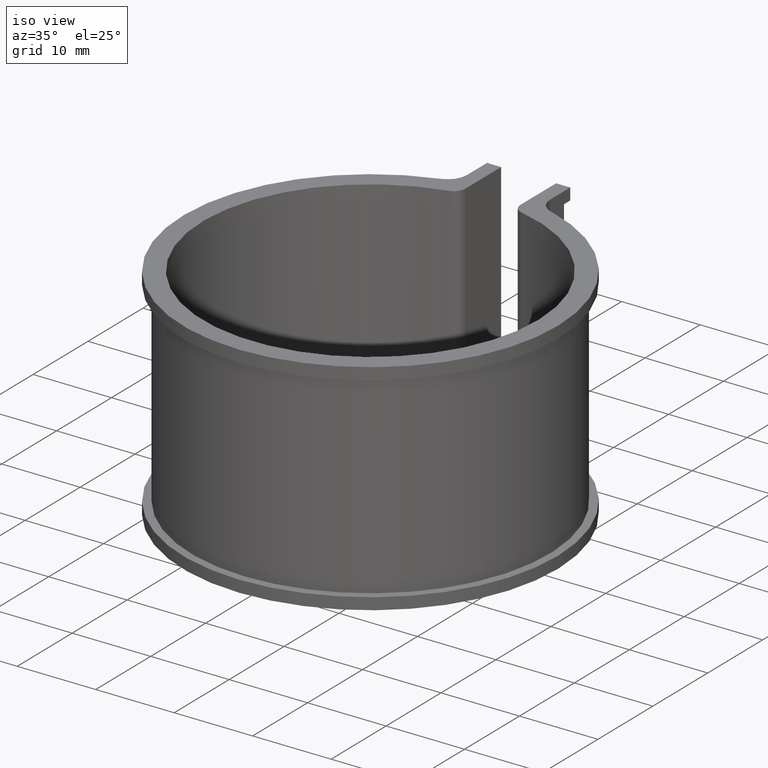
[diagram: clean part render]
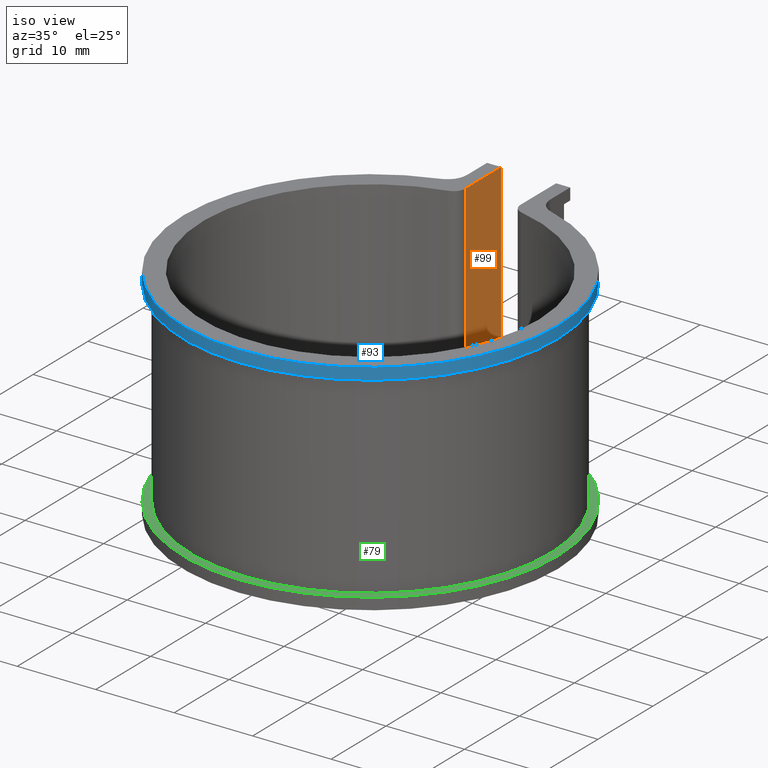
[diagram: same view with three faces highlighted in distinct colors, each labeled with its STEP entity id]
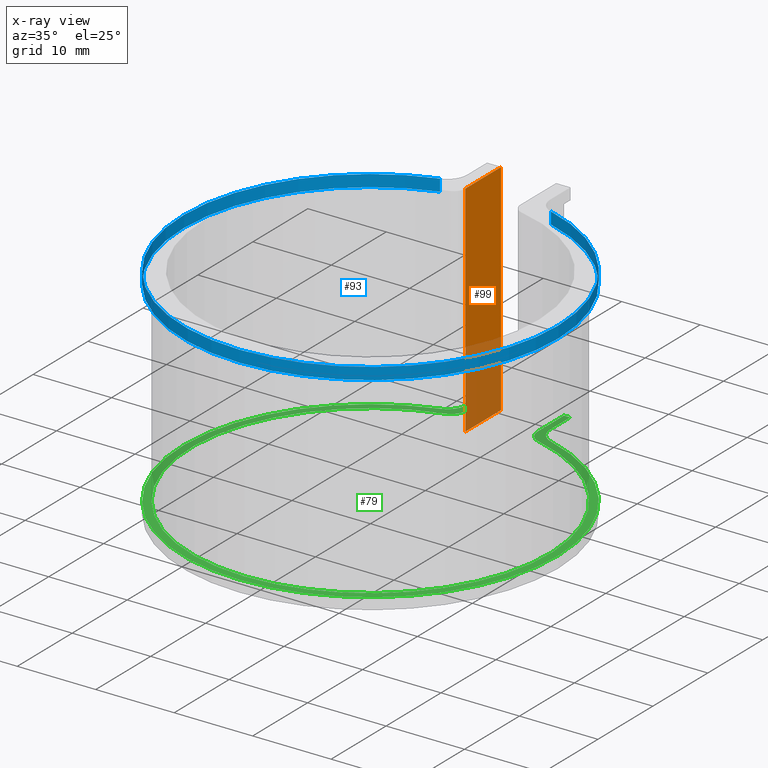
[diagram: x-ray of the same camera — body ghosted, the three highlighted faces saturated]
A machine part, iso view with three faces highlighted in distinct colors.
The next image is the same camera in x-ray (body ghosted, the three faces saturated) — at least one of them is partly hidden behind the body in this view.
Their STEP definitions:

[orange] entity #99 — the highlighted planar face has unit normal (1, -0, 0).
#99 = ADVANCED_FACE( '', ( #150 ), #151, .T. );
#150 = FACE_OUTER_BOUND( '', #202, .T. );
#151 = PLANE( '', #203 );
#202 = EDGE_LOOP( '', ( #414, #415, #416, #417 ) );
#203 = AXIS2_PLACEMENT_3D( '', #418, #419, #420 );
#414 = ORIENTED_EDGE( '', *, *, #488, .F. );
#415 = ORIENTED_EDGE( '', *, *, #481, .T. );
#416 = ORIENTED_EDGE( '', *, *, #498, .T. );
#417 = ORIENTED_EDGE( '', *, *, #436, .T. );
#418 = CARTESIAN_POINT( '', ( -3.50000000000000, 21.0611609366625, -25.0000000000000 ) );
#419 = DIRECTION( '', ( 1.00000000000000, -8.32667268468868E-017, 0.000000000000000 ) );
#420 = DIRECTION( '', ( -8.32667268468868E-017, -1.00000000000000, 0.000000000000000 ) );
#436 = EDGE_CURVE( '', #517, #515, #518, .T. );
#481 = EDGE_CURVE( '', #595, #592, #596, .F. );
#488 = EDGE_CURVE( '', #595, #515, #606, .T. );
#498 = EDGE_CURVE( '', #592, #517, #618, .T. );
#515 = VERTEX_POINT( '', #642 );
#517 = VERTEX_POINT( '', #645 );
#518 = LINE( '', #646, #647 );
#592 = VERTEX_POINT( '', #748 );
#595 = VERTEX_POINT( '', #751 );
#596 = LINE( '', #752, #753 );
#606 = LINE( '', #765, #766 );
#618 = LINE( '', #784, #785 );
#642 = CARTESIAN_POINT( '', ( -3.50000000000000, 28.8025110199728, 1.50000000000000 ) );
#645 = CARTESIAN_POINT( '', ( -3.50000000000000, 28.8025110199728, -26.5000000000000 ) );
#646 = CARTESIAN_POINT( '', ( -3.50000000000000, 28.8025110199727, -25.0000000000000 ) );
#647 = VECTOR( '', #796, 1000.00000000000 );
#748 = CARTESIAN_POINT( '', ( -3.50000000000000, 22.2962440783196, -26.5000000000000 ) );
#751 = CARTESIAN_POINT( '', ( -3.50000000000000, 22.2962440783196, 1.50000000000000 ) );
#752 = CARTESIAN_POINT( '', ( -3.50000000000000, 22.2962440783196, -25.0000000000000 ) );
#753 = VECTOR( '', #875, 1000.00000000000 );
#765 = CARTESIAN_POINT( '', ( -3.50000000000000, 21.0611609366626, 1.50000000000000 ) );
#766 = VECTOR( '', #890, 1000.00000000000 );
#784 = CARTESIAN_POINT( '', ( -3.50000000000000, 21.0611609366626, -26.5000000000000 ) );
#785 = VECTOR( '', #906, 1000.00000000000 );
#796 = DIRECTION( '', ( 0.000000000000000, 0.000000000000000, 1.00000000000000 ) );
#875 = DIRECTION( '', ( 0.000000000000000, 0.000000000000000, 1.00000000000000 ) );
#890 = DIRECTION( '', ( 6.12303176911189E-017, 1.00000000000000, 0.000000000000000 ) );
#906 = DIRECTION( '', ( 6.12303176911189E-017, 1.00000000000000, 0.000000000000000 ) );

[blue] entity #93 — the highlighted cylindrical surface (partial cylindrical patch) has radius 23.85 mm, axis along (0, 0, 1).
#93 = ADVANCED_FACE( '', ( #138 ), #139, .T. );
#138 = FACE_OUTER_BOUND( '', #190, .T. );
#139 = CYLINDRICAL_SURFACE( '', #191, 23.8500000000000 );
#190 = EDGE_LOOP( '', ( #360, #361, #362, #363 ) );
#191 = AXIS2_PLACEMENT_3D( '', #364, #365, #366 );
#360 = ORIENTED_EDGE( '', *, *, #451, .T. );
#361 = ORIENTED_EDGE( '', *, *, #478, .T. );
#362 = ORIENTED_EDGE( '', *, *, #489, .F. );
#363 = ORIENTED_EDGE( '', *, *, #473, .T. );
#364 = CARTESIAN_POINT( '', ( 0.000000000000000, 2.08166817117217E-014, 1.50000000000000 ) );
#365 = DIRECTION( '', ( 0.000000000000000, 0.000000000000000, 1.00000000000000 ) );
#366 = DIRECTION( '', ( 0.000000000000000, -1.00000000000000, 0.000000000000000 ) );
#451 = EDGE_CURVE( '', #545, #543, #546, .T. );
#473 = EDGE_CURVE( '', #579, #545, #581, .T. );
#478 = EDGE_CURVE( '', #543, #587, #590, .F. );
#489 = EDGE_CURVE( '', #579, #587, #607, .T. );
#543 = VERTEX_POINT( '', #682 );
#545 = VERTEX_POINT( '', #684 );
#546 = CIRCLE( '', #685, 23.8500000000000 );
#579 = VERTEX_POINT( '', #730 );
#581 = LINE( '', #732, #733 );
#587 = VERTEX_POINT( '', #741 );
#590 = LINE( '', #744, #745 );
#607 = CIRCLE( '', #767, 23.8500000000000 );
#682 = CARTESIAN_POINT( '', ( 7.05996204933587, 22.7811201625806, 2.13821176807376E-047 ) );
#684 = CARTESIAN_POINT( '', ( -7.05996204933587, 22.7811201625806, 2.13821176807376E-047 ) );
#685 = AXIS2_PLACEMENT_3D( '', #819, #820, #821 );
#730 = CARTESIAN_POINT( '', ( -7.05996204933587, 22.7811201625806, 1.50000000000000 ) );
#732 = CARTESIAN_POINT( '', ( -7.05996204933587, 22.7811201625806, 1.50000000000000 ) );
#733 = VECTOR( '', #861, 1000.00000000000 );
#741 = CARTESIAN_POINT( '', ( 7.05996204933587, 22.7811201625806, 1.50000000000000 ) );
#744 = CARTESIAN_POINT( '', ( 7.05996204933587, 22.7811201625806, 1.50000000000000 ) );
#745 = VECTOR( '', #870, 1000.00000000000 );
#767 = AXIS2_PLACEMENT_3D( '', #891, #892, #893 );
#819 = CARTESIAN_POINT( '', ( 0.000000000000000, 2.08166817117217E-014, 0.000000000000000 ) );
#820 = DIRECTION( '', ( 0.000000000000000, 0.000000000000000, 1.00000000000000 ) );
#821 = DIRECTION( '', ( 1.00000000000000, 0.000000000000000, 0.000000000000000 ) );
#861 = DIRECTION( '', ( 0.000000000000000, 0.000000000000000, -1.00000000000000 ) );
#870 = DIRECTION( '', ( 0.000000000000000, 0.000000000000000, -1.00000000000000 ) );
#891 = CARTESIAN_POINT( '', ( 0.000000000000000, 2.08166817117217E-014, 1.50000000000000 ) );
#892 = DIRECTION( '', ( 0.000000000000000, 0.000000000000000, 1.00000000000000 ) );
#893 = DIRECTION( '', ( 1.00000000000000, 0.000000000000000, 0.000000000000000 ) );

[green] entity #79 — the highlighted planar face has unit normal (0, 0, 1).
#79 = ADVANCED_FACE( '', ( #110 ), #111, .T. );
#110 = FACE_OUTER_BOUND( '', #162, .T. );
#111 = PLANE( '', #163 );
#162 = EDGE_LOOP( '', ( #246, #247, #248, #249, #250, #251, #252, #253, #254, #255, #256, #257 ) );
#163 = AXIS2_PLACEMENT_3D( '', #258, #259, #260 );
#246 = ORIENTED_EDGE( '', *, *, #453, .F. );
#247 = ORIENTED_EDGE( '', *, *, #454, .T. );
#248 = ORIENTED_EDGE( '', *, *, #455, .F. );
#249 = ORIENTED_EDGE( '', *, *, #439, .T. );
#250 = ORIENTED_EDGE( '', *, *, #456, .T. );
#251 = ORIENTED_EDGE( '', *, *, #457, .T. );
#252 = ORIENTED_EDGE( '', *, *, #458, .T. );
#253 = ORIENTED_EDGE( '', *, *, #459, .T. );
#254 = ORIENTED_EDGE( '', *, *, #460, .T. );
#255 = ORIENTED_EDGE( '', *, *, #461, .T. );
#256 = ORIENTED_EDGE( '', *, *, #462, .F. );
#257 = ORIENTED_EDGE( '', *, *, #463, .T. );
#258 = CARTESIAN_POINT( '', ( 0.000000000000000, 2.08166817117217E-014, -25.0000000000000 ) );
#259 = DIRECTION( '', ( 0.000000000000000, 0.000000000000000, 1.00000000000000 ) );
#260 = DIRECTION( '', ( 0.000000000000000, 1.00000000000000, 0.000000000000000 ) );
#439 = EDGE_CURVE( '', #508, #521, #523, .T. );
#453 = EDGE_CURVE( '', #548, #549, #550, .T. );
#454 = EDGE_CURVE( '', #548, #551, #552, .T. );
#455 = EDGE_CURVE( '', #508, #551, #553, .T. );
#456 = EDGE_CURVE( '', #521, #554, #555, .T. );
#457 = EDGE_CURVE( '', #554, #556, #557, .F. );
#458 = EDGE_CURVE( '', #556, #558, #559, .T. );
#459 = EDGE_CURVE( '', #558, #560, #561, .F. );
#460 = EDGE_CURVE( '', #560, #562, #563, .T. );
#461 = EDGE_CURVE( '', #562, #564, #565, .T. );
#462 = EDGE_CURVE( '', #566, #564, #567, .T. );
#463 = EDGE_CURVE( '', #566, #549, #568, .T. );
#508 = VERTEX_POINT( '', #632 );
#521 = VERTEX_POINT( '', #651 );
#523 = LINE( '', #654, #655 );
#548 = VERTEX_POINT( '', #687 );
#549 = VERTEX_POINT( '', #688 );
#550 = CIRCLE( '', #689, 22.8500000000000 );
#551 = VERTEX_POINT( '', #690 );
#552 = CIRCLE( '', #691, 2.00000000000000 );
#553 = LINE( '', #692, #693 );
#554 = VERTEX_POINT( '', #694 );
#555 = LINE( '', #695, #696 );
#556 = VERTEX_POINT( '', #697 );
#557 = CIRCLE( '', #698, 2.50000000000000 );
#558 = VERTEX_POINT( '', #699 );
#559 = CIRCLE( '', #700, 23.8500000000000 );
#560 = VERTEX_POINT( '', #701 );
#561 = CIRCLE( '', #702, 2.50000000000000 );
#562 = VERTEX_POINT( '', #703 );
#563 = LINE( '', #704, #705 );
#564 = VERTEX_POINT( '', #706 );
#565 = LINE( '', #707, #708 );
#566 = VERTEX_POINT( '', #709 );
#567 = LINE( '', #710, #711 );
#568 = CIRCLE( '', #712, 2.00000000000000 );
#632 = CARTESIAN_POINT( '', ( -4.50000000000002, 28.8025110199728, -25.0000000000000 ) );
#651 = CARTESIAN_POINT( '', ( -5.30000000000001, 28.8025110199728, -25.0000000000000 ) );
#654 = CARTESIAN_POINT( '', ( -3.50000000000000, 28.8025110199728, -25.0000000000000 ) );
#655 = VECTOR( '', #799, 1000.00000000000 );
#687 = CARTESIAN_POINT( '', ( -5.97686116700202, 22.0544696284083, -25.0000000000000 ) );
#688 = CARTESIAN_POINT( '', ( 5.97686116700202, 22.0544696284083, -25.0000000000000 ) );
#689 = AXIS2_PLACEMENT_3D( '', #825, #826, #827 );
#690 = CARTESIAN_POINT( '', ( -4.50000000000000, 23.9848389613106, -25.0000000000000 ) );
#691 = AXIS2_PLACEMENT_3D( '', #828, #829, #830 );
#692 = CARTESIAN_POINT( '', ( -4.50000000000000, 28.8025110199728, -25.0000000000000 ) );
#693 = VECTOR( '', #831, 1000.00000000000 );
#694 = CARTESIAN_POINT( '', ( -5.30000000000000, 25.1690782509015, -25.0000000000000 ) );
#695 = CARTESIAN_POINT( '', ( -5.30000000000000, 28.8025110199728, -25.0000000000000 ) );
#696 = VECTOR( '', #832, 1000.00000000000 );
#697 = CARTESIAN_POINT( '', ( -7.05996204933587, 22.7811201625806, -25.0000000000000 ) );
#698 = AXIS2_PLACEMENT_3D( '', #833, #834, #835 );
#699 = CARTESIAN_POINT( '', ( 7.05996204933587, 22.7811201625806, -25.0000000000000 ) );
#700 = AXIS2_PLACEMENT_3D( '', #836, #837, #838 );
#701 = CARTESIAN_POINT( '', ( 5.30000000000000, 25.1690782509015, -25.0000000000000 ) );
#702 = AXIS2_PLACEMENT_3D( '', #839, #840, #841 );
#703 = CARTESIAN_POINT( '', ( 5.30000000000000, 28.8025110199728, -25.0000000000000 ) );
#704 = CARTESIAN_POINT( '', ( 5.30000000000000, 23.2536556265891, -25.0000000000000 ) );
#705 = VECTOR( '', #842, 1000.00000000000 );
#706 = CARTESIAN_POINT( '', ( 4.50000000000001, 28.8025110199728, -25.0000000000000 ) );
#707 = CARTESIAN_POINT( '', ( 5.30000000000003, 28.8025110199728, -25.0000000000000 ) );
#708 = VECTOR( '', #843, 1000.00000000000 );
#709 = CARTESIAN_POINT( '', ( 4.50000000000000, 23.9848389613106, -25.0000000000000 ) );
#710 = CARTESIAN_POINT( '', ( 4.50000000000000, 22.4025110199728, -25.0000000000000 ) );
#711 = VECTOR( '', #844, 1000.00000000000 );
#712 = AXIS2_PLACEMENT_3D( '', #845, #846, #847 );
#799 = DIRECTION( '', ( -1.00000000000000, 0.000000000000000, 0.000000000000000 ) );
#825 = CARTESIAN_POINT( '', ( 2.60208521396521E-015, 1.04083408558608E-014, -25.0000000000000 ) );
#826 = DIRECTION( '', ( 0.000000000000000, 0.000000000000000, 1.00000000000000 ) );
#827 = DIRECTION( '', ( 1.00000000000000, -8.32667268468867E-017, 0.000000000000000 ) );
#828 = CARTESIAN_POINT( '', ( -6.50000000000001, 23.9848389613106, -25.0000000000000 ) );
#829 = DIRECTION( '', ( 0.000000000000000, 0.000000000000000, 1.00000000000000 ) );
#830 = DIRECTION( '', ( 1.00000000000000, 0.000000000000000, 0.000000000000000 ) );
#831 = DIRECTION( '', ( 5.55111512312578E-017, -1.00000000000000, 0.000000000000000 ) );
#832 = DIRECTION( '', ( -6.12303176911189E-017, -1.00000000000000, 0.000000000000000 ) );
#833 = CARTESIAN_POINT( '', ( -7.80000000000000, 25.1690782509015, -25.0000000000000 ) );
#834 = DIRECTION( '', ( 0.000000000000000, 0.000000000000000, 1.00000000000000 ) );
#835 = DIRECTION( '', ( 1.00000000000000, 0.000000000000000, 0.000000000000000 ) );
#836 = CARTESIAN_POINT( '', ( 0.000000000000000, 2.08166817117217E-014, -25.0000000000000 ) );
#837 = DIRECTION( '', ( 0.000000000000000, 0.000000000000000, 1.00000000000000 ) );
#838 = DIRECTION( '', ( 1.00000000000000, 0.000000000000000, 0.000000000000000 ) );
#839 = CARTESIAN_POINT( '', ( 7.80000000000001, 25.1690782509015, -25.0000000000000 ) );
#840 = DIRECTION( '', ( 0.000000000000000, 0.000000000000000, 1.00000000000000 ) );
#841 = DIRECTION( '', ( 1.00000000000000, 0.000000000000000, 0.000000000000000 ) );
#842 = DIRECTION( '', ( 6.12303176911189E-017, 1.00000000000000, 0.000000000000000 ) );
#843 = DIRECTION( '', ( -1.00000000000000, 0.000000000000000, 0.000000000000000 ) );
#844 = DIRECTION( '', ( -5.55111512312578E-017, 1.00000000000000, 0.000000000000000 ) );
#845 = CARTESIAN_POINT( '', ( 6.50000000000001, 23.9848389613106, -25.0000000000000 ) );
#846 = DIRECTION( '', ( 0.000000000000000, 0.000000000000000, 1.00000000000000 ) );
#847 = DIRECTION( '', ( 1.00000000000000, 0.000000000000000, 0.000000000000000 ) );